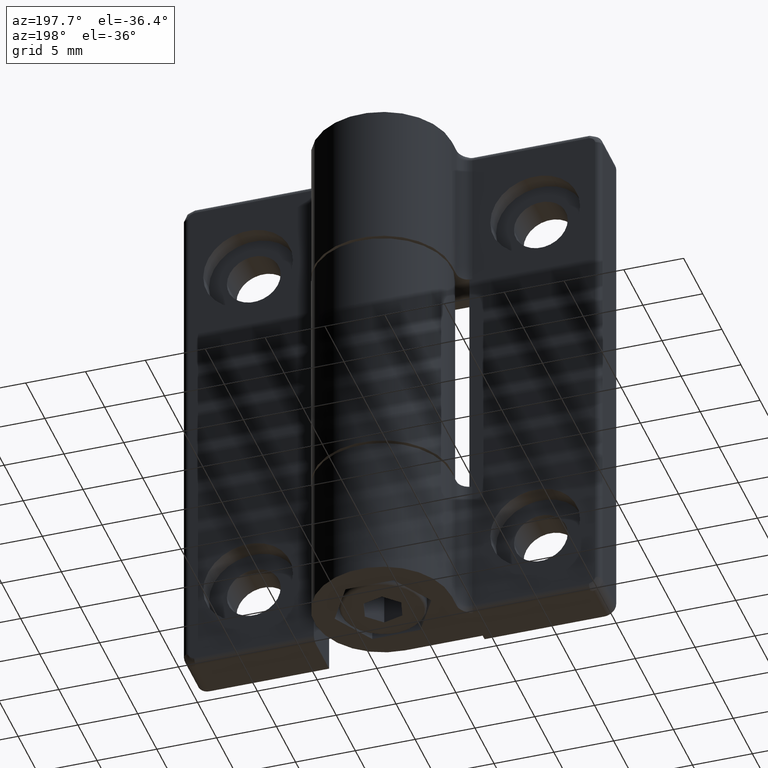
[diagram: clean part render]
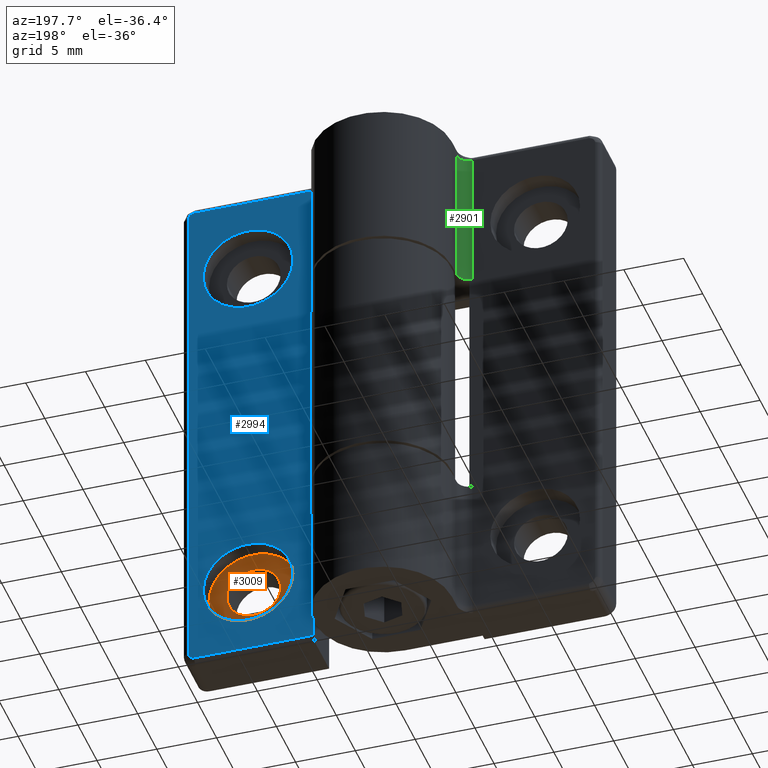
[diagram: same view with three faces highlighted in distinct colors, each labeled with its STEP entity id]
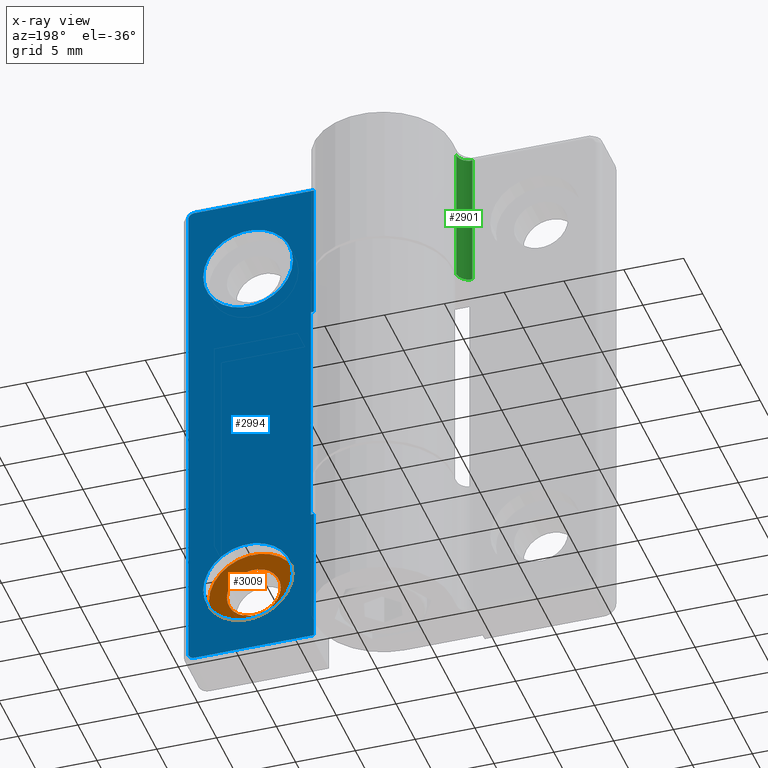
[diagram: x-ray of the same camera — body ghosted, the three highlighted faces saturated]
A machine part, auxiliary view with three faces highlighted in distinct colors.
The next image is the same camera in x-ray (body ghosted, the three faces saturated) — at least one of them is partly hidden behind the body in this view.
Their STEP definitions:

[orange] entity #3009 — the highlighted planar face has unit normal (0, -1, 0).
#337=FACE_BOUND('',#669,.T.);
#410=PLANE('',#3192);
#521=FACE_OUTER_BOUND('',#668,.T.);
#668=EDGE_LOOP('',(#2848));
#669=EDGE_LOOP('',(#2849));
#1059=CIRCLE('',#3193,3.75);
#1060=CIRCLE('',#3194,2.25);
#1449=VERTEX_POINT('',#30343);
#1450=VERTEX_POINT('',#30345);
#1921=EDGE_CURVE('',#1449,#1449,#1059,.T.);
#1922=EDGE_CURVE('',#1450,#1450,#1060,.T.);
#2848=ORIENTED_EDGE('',*,*,#1921,.F.);
#2849=ORIENTED_EDGE('',*,*,#1922,.T.);
#3009=ADVANCED_FACE('',(#521,#337),#410,.F.);
#3192=AXIS2_PLACEMENT_3D('',#30342,#3707,#3708);
#3193=AXIS2_PLACEMENT_3D('',#30344,#3709,#3710);
#3194=AXIS2_PLACEMENT_3D('',#30346,#3711,#3712);
#3707=DIRECTION('center_axis',(0.,0.,-1.));
#3708=DIRECTION('ref_axis',(1.,0.,0.));
#3709=DIRECTION('center_axis',(0.,0.,-1.));
#3710=DIRECTION('ref_axis',(1.,0.,0.));
#3711=DIRECTION('center_axis',(0.,0.,-1.));
#3712=DIRECTION('ref_axis',(1.,0.,0.));
#30342=CARTESIAN_POINT('Origin',(39.8356679038389,-15.5,2.5));
#30343=CARTESIAN_POINT('',(36.0856679038389,-15.5,2.5));
#30344=CARTESIAN_POINT('Origin',(39.8356679038389,-15.5,2.5));
#30345=CARTESIAN_POINT('',(37.5856679038389,-15.5,2.5));
#30346=CARTESIAN_POINT('Origin',(39.8356679038389,-15.5,2.5));

[blue] entity #2994 — the highlighted planar face has unit normal (0, 1, 0).
#332=FACE_BOUND('',#649,.T.);
#333=FACE_BOUND('',#650,.T.);
#402=PLANE('',#3168);
#506=FACE_OUTER_BOUND('',#648,.T.);
#648=EDGE_LOOP('',(#2786,#2787,#2788,#2789,#2790,#2791,#2792,#2793,#2794,
#2795));
#649=EDGE_LOOP('',(#2796));
#650=EDGE_LOOP('',(#2797));
#798=LINE('',#30210,#952);
#806=LINE('',#30234,#960);
#812=LINE('',#30250,#966);
#813=LINE('',#30251,#967);
#815=LINE('',#30273,#969);
#816=LINE('',#30275,#970);
#817=LINE('',#30277,#971);
#818=LINE('',#30280,#972);
#952=VECTOR('',#3585,0.249999999999995);
#960=VECTOR('',#3603,0.249999999999995);
#966=VECTOR('',#3623,12.);
#967=VECTOR('',#3624,12.);
#969=VECTOR('',#3640,10.);
#970=VECTOR('',#3643,20.);
#971=VECTOR('',#3644,43.);
#972=VECTOR('',#3647,10.);
#1045=CIRCLE('',#3162,0.5);
#1049=CIRCLE('',#3169,0.5);
#1050=CIRCLE('',#3170,3.75);
#1051=CIRCLE('',#3171,3.75);
#1409=VERTEX_POINT('',#30200);
#1413=VERTEX_POINT('',#30208);
#1420=VERTEX_POINT('',#30224);
#1424=VERTEX_POINT('',#30232);
#1426=VERTEX_POINT('',#30245);
#1427=VERTEX_POINT('',#30248);
#1429=VERTEX_POINT('',#30262);
#1430=VERTEX_POINT('',#30264);
#1432=VERTEX_POINT('',#30276);
#1433=VERTEX_POINT('',#30278);
#1434=VERTEX_POINT('',#30281);
#1435=VERTEX_POINT('',#30283);
#1864=EDGE_CURVE('',#1413,#1409,#798,.T.);
#1875=EDGE_CURVE('',#1420,#1424,#806,.T.);
#1884=EDGE_CURVE('',#1427,#1424,#812,.T.);
#1885=EDGE_CURVE('',#1409,#1426,#813,.T.);
#1887=EDGE_CURVE('',#1429,#1430,#1045,.T.);
#1892=EDGE_CURVE('',#1430,#1427,#815,.T.);
#1893=EDGE_CURVE('',#1420,#1413,#816,.T.);
#1894=EDGE_CURVE('',#1432,#1429,#817,.T.);
#1895=EDGE_CURVE('',#1433,#1432,#1049,.T.);
#1896=EDGE_CURVE('',#1426,#1433,#818,.T.);
#1897=EDGE_CURVE('',#1434,#1434,#1050,.T.);
#1898=EDGE_CURVE('',#1435,#1435,#1051,.T.);
#2786=ORIENTED_EDGE('',*,*,#1893,.F.);
#2787=ORIENTED_EDGE('',*,*,#1875,.T.);
#2788=ORIENTED_EDGE('',*,*,#1884,.F.);
#2789=ORIENTED_EDGE('',*,*,#1892,.F.);
#2790=ORIENTED_EDGE('',*,*,#1887,.F.);
#2791=ORIENTED_EDGE('',*,*,#1894,.F.);
#2792=ORIENTED_EDGE('',*,*,#1895,.F.);
#2793=ORIENTED_EDGE('',*,*,#1896,.F.);
#2794=ORIENTED_EDGE('',*,*,#1885,.F.);
#2795=ORIENTED_EDGE('',*,*,#1864,.F.);
#2796=ORIENTED_EDGE('',*,*,#1897,.T.);
#2797=ORIENTED_EDGE('',*,*,#1898,.T.);
#2994=ADVANCED_FACE('',(#506,#332,#333),#402,.T.);
#3162=AXIS2_PLACEMENT_3D('',#30265,#3627,#3628);
#3168=AXIS2_PLACEMENT_3D('',#30274,#3641,#3642);
#3169=AXIS2_PLACEMENT_3D('',#30279,#3645,#3646);
#3170=AXIS2_PLACEMENT_3D('',#30282,#3648,#3649);
#3171=AXIS2_PLACEMENT_3D('',#30284,#3650,#3651);
#3585=DIRECTION('',(1.,0.,0.));
#3603=DIRECTION('',(1.,0.,0.));
#3623=DIRECTION('',(0.,-1.,0.));
#3624=DIRECTION('',(0.,-1.,-3.33066907387545E-15));
#3627=DIRECTION('center_axis',(0.,0.,-1.));
#3628=DIRECTION('ref_axis',(-0.707106781186548,0.707106781186548,0.));
#3640=DIRECTION('',(1.,0.,0.));
#3641=DIRECTION('center_axis',(0.,0.,1.));
#3642=DIRECTION('ref_axis',(1.,0.,0.));
#3643=DIRECTION('',(0.,-1.,0.));
#3644=DIRECTION('',(0.,1.,0.));
#3645=DIRECTION('center_axis',(0.,0.,-1.));
#3646=DIRECTION('ref_axis',(-0.707106781186548,-0.707106781186548,0.));
#3647=DIRECTION('',(-1.,0.,0.));
#3648=DIRECTION('center_axis',(0.,0.,-1.));
#3649=DIRECTION('ref_axis',(1.,0.,0.));
#3650=DIRECTION('center_axis',(0.,0.,-1.));
#3651=DIRECTION('ref_axis',(1.,0.,0.));
#30200=CARTESIAN_POINT('',(45.3356679038389,-10.,4.));
#30208=CARTESIAN_POINT('',(45.0856679038389,-10.,4.));
#30210=CARTESIAN_POINT('',(34.3356679038389,-10.,4.));
#30224=CARTESIAN_POINT('',(45.0856679038389,10.,4.));
#30232=CARTESIAN_POINT('',(45.3356679038389,10.,4.));
#30234=CARTESIAN_POINT('',(34.3356679038389,10.,4.));
#30245=CARTESIAN_POINT('',(45.3356679038389,-22.,4.));
#30248=CARTESIAN_POINT('',(45.3356679038389,22.,4.));
#30250=CARTESIAN_POINT('',(45.3356679038389,5.,4.));
#30251=CARTESIAN_POINT('',(45.3356679038389,-11.,4.00000000000004));
#30262=CARTESIAN_POINT('',(34.8356679038389,21.5,4.));
#30264=CARTESIAN_POINT('',(35.3356679038389,22.,4.));
#30265=CARTESIAN_POINT('Origin',(35.3356679038389,21.5,4.));
#30273=CARTESIAN_POINT('',(40.1481679038389,22.,4.));
#30274=CARTESIAN_POINT('Origin',(34.3356679038389,0.,4.));
#30275=CARTESIAN_POINT('',(45.0856679038389,0.,4.));
#30276=CARTESIAN_POINT('',(34.8356679038389,-21.5,4.));
#30277=CARTESIAN_POINT('',(34.8356679038389,0.,4.));
#30278=CARTESIAN_POINT('',(35.3356679038389,-22.,4.));
#30279=CARTESIAN_POINT('Origin',(35.3356679038389,-21.5,4.));
#30280=CARTESIAN_POINT('',(40.1481679038389,-22.,4.));
#30281=CARTESIAN_POINT('',(36.0856679038389,-15.5,4.));
#30282=CARTESIAN_POINT('Origin',(39.8356679038389,-15.5,4.));
#30283=CARTESIAN_POINT('',(36.0856679038389,15.5,4.));
#30284=CARTESIAN_POINT('Origin',(39.8356679038389,15.5,4.));

[green] entity #2901 — the highlighted cylindrical surface (edge-blend (fillet) strip) has radius 1 mm, axis along (0, 0, -1).
#413=FACE_OUTER_BOUND('',#527,.T.);
#527=EDGE_LOOP('',(#1928,#1929,#1930,#1931));
#682=LINE('',#3748,#836);
#683=LINE('',#3751,#837);
#836=VECTOR('',#3219,11.75);
#837=VECTOR('',#3222,11.75);
#990=CIRCLE('',#3023,1.);
#991=CIRCLE('',#3024,1.);
#1066=VERTEX_POINT('',#3744);
#1067=VERTEX_POINT('',#3745);
#1068=VERTEX_POINT('',#3747);
#1069=VERTEX_POINT('',#3749);
#1456=EDGE_CURVE('',#1066,#1067,#990,.T.);
#1457=EDGE_CURVE('',#1067,#1068,#682,.T.);
#1458=EDGE_CURVE('',#1069,#1068,#991,.T.);
#1459=EDGE_CURVE('',#1069,#1066,#683,.T.);
#1928=ORIENTED_EDGE('',*,*,#1456,.T.);
#1929=ORIENTED_EDGE('',*,*,#1457,.T.);
#1930=ORIENTED_EDGE('',*,*,#1458,.F.);
#1931=ORIENTED_EDGE('',*,*,#1459,.T.);
#2869=CYLINDRICAL_SURFACE('',#3022,1.);
#2901=ADVANCED_FACE('',(#413),#2869,.F.);
#3022=AXIS2_PLACEMENT_3D('',#3743,#3215,#3216);
#3023=AXIS2_PLACEMENT_3D('',#3746,#3217,#3218);
#3024=AXIS2_PLACEMENT_3D('',#3750,#3220,#3221);
#3215=DIRECTION('center_axis',(0.,1.,0.));
#3216=DIRECTION('ref_axis',(0.707106781186548,0.,-0.707106781186547));
#3217=DIRECTION('center_axis',(0.,1.,0.));
#3218=DIRECTION('ref_axis',(0.707106781186548,0.,-0.707106781186547));
#3219=DIRECTION('',(0.,-1.,0.));
#3220=DIRECTION('center_axis',(0.,1.,0.));
#3221=DIRECTION('ref_axis',(1.,0.,0.));
#3222=DIRECTION('',(0.,1.,0.));
#3743=CARTESIAN_POINT('Origin',(10.75,0.,5.));
#3744=CARTESIAN_POINT('',(11.75,-10.25,5.));
#3745=CARTESIAN_POINT('',(10.75,-10.25,4.));
#3746=CARTESIAN_POINT('Origin',(10.75,-10.25,5.));
#3747=CARTESIAN_POINT('',(10.75,-22.,4.));
#3748=CARTESIAN_POINT('',(10.75,0.,4.));
#3749=CARTESIAN_POINT('',(11.75,-22.,5.));
#3750=CARTESIAN_POINT('Origin',(10.75,-22.,5.));
#3751=CARTESIAN_POINT('',(11.75,0.,5.));